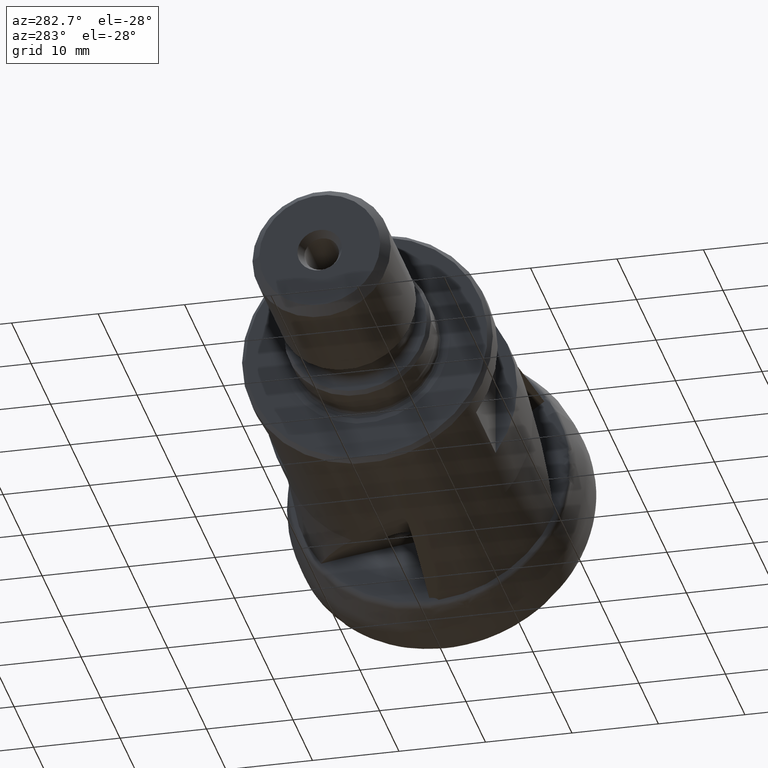
[diagram: clean part render]
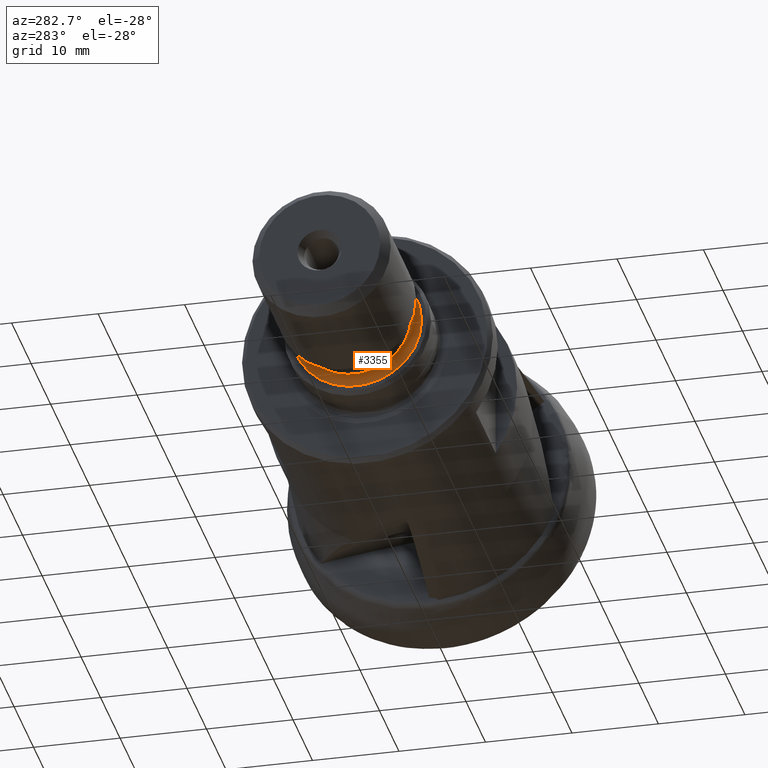
[diagram: same view with one face highlighted and labeled with its STEP entity id]
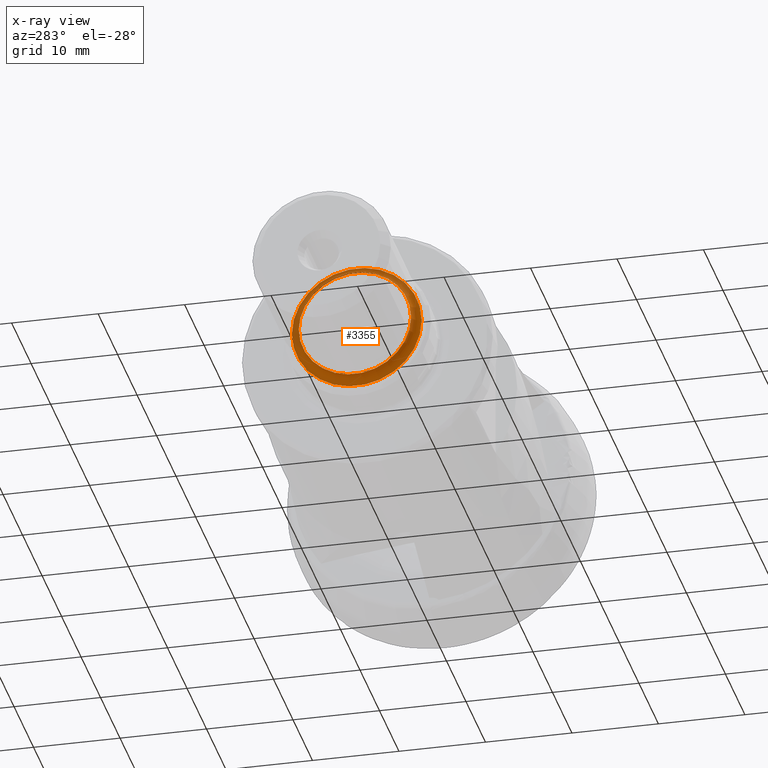
[diagram: x-ray of the same camera — body ghosted, the highlighted face saturated]
A machine part, auxiliary view. The second image highlights one B-rep face of the part: STEP entity #3355.
The next image is the same camera in x-ray: the body ghosted, the highlighted face saturated — about 31% of this face is hidden behind the body in this view.
In plain terms, the highlighted toroidal blend (fillet) surface has major radius 7.5 mm and minor (blend) radius 1 mm.
Its self-contained STEP definition (entity closure, byte-faithful):
#44 = EDGE_LOOP ( 'NONE', ( #787 ) ) ;
#61 = DIRECTION ( 'NONE',  ( 0.0000000000000000000, 1.000000000000000000, 0.0000000000000000000 ) ) ;
#195 = CIRCLE ( 'NONE', #4012, 6.500000000000000000 ) ;
#416 = TOROIDAL_SURFACE ( 'NONE', #2842, 7.500000000000000000, 1.000000000000000400 ) ;
#432 = AXIS2_PLACEMENT_3D ( 'NONE', #3369, #1136, #3741 ) ;
#571 = DIRECTION ( 'NONE',  ( 1.000000000000000000, 1.224646799147351500E-016, -0.0000000000000000000 ) ) ;
#592 = EDGE_LOOP ( 'NONE', ( #2410 ) ) ;
#787 = ORIENTED_EDGE ( 'NONE', *, *, #3612, .F. ) ;
#863 = CIRCLE ( 'NONE', #432, 7.500000000000007100 ) ;
#880 = VERTEX_POINT ( 'NONE', #2679 ) ;
#934 = FACE_OUTER_BOUND ( 'NONE', #44, .T. ) ;
#1136 = DIRECTION ( 'NONE',  ( 1.000000000000000000, 1.224646799147351500E-016, -0.0000000000000000000 ) ) ;
#1532 = FACE_OUTER_BOUND ( 'NONE', #592, .T. ) ;
#2233 = CARTESIAN_POINT ( 'NONE',  ( -47.05000000000000400, -5.761963189988289000E-015, 0.0000000000000000000 ) ) ;
#2385 = EDGE_CURVE ( 'NONE', #880, #880, #195, .T. ) ;
#2410 = ORIENTED_EDGE ( 'NONE', *, *, #2385, .T. ) ;
#2647 = VERTEX_POINT ( 'NONE', #4530 ) ;
#2679 = CARTESIAN_POINT ( 'NONE',  ( -47.05000000000000400, 6.499999999999993800, 0.0000000000000000000 ) ) ;
#2842 = AXIS2_PLACEMENT_3D ( 'NONE', #4650, #571, #3954 ) ;
#3329 = DIRECTION ( 'NONE',  ( 1.000000000000000000, 1.224646799147351500E-016, -0.0000000000000000000 ) ) ;
#3355 = ADVANCED_FACE ( 'NONE', ( #1532, #934 ), #416, .F. ) ;
#3369 = CARTESIAN_POINT ( 'NONE',  ( -46.04999999999999700, -5.639498510073552300E-015, 0.0000000000000000000 ) ) ;
#3612 = EDGE_CURVE ( 'NONE', #2647, #2647, #863, .T. ) ;
#3741 = DIRECTION ( 'NONE',  ( 0.0000000000000000000, 1.000000000000000000, 0.0000000000000000000 ) ) ;
#3954 = DIRECTION ( 'NONE',  ( -1.224646799147351500E-016, 1.000000000000000000, 0.0000000000000000000 ) ) ;
#4012 = AXIS2_PLACEMENT_3D ( 'NONE', #2233, #3329, #61 ) ;
#4530 = CARTESIAN_POINT ( 'NONE',  ( -46.04999999999999700, 7.500000000000000900, 0.0000000000000000000 ) ) ;
#4650 = CARTESIAN_POINT ( 'NONE',  ( -47.04999999999999700, -6.071532165918824800E-015, 0.0000000000000000000 ) ) ;